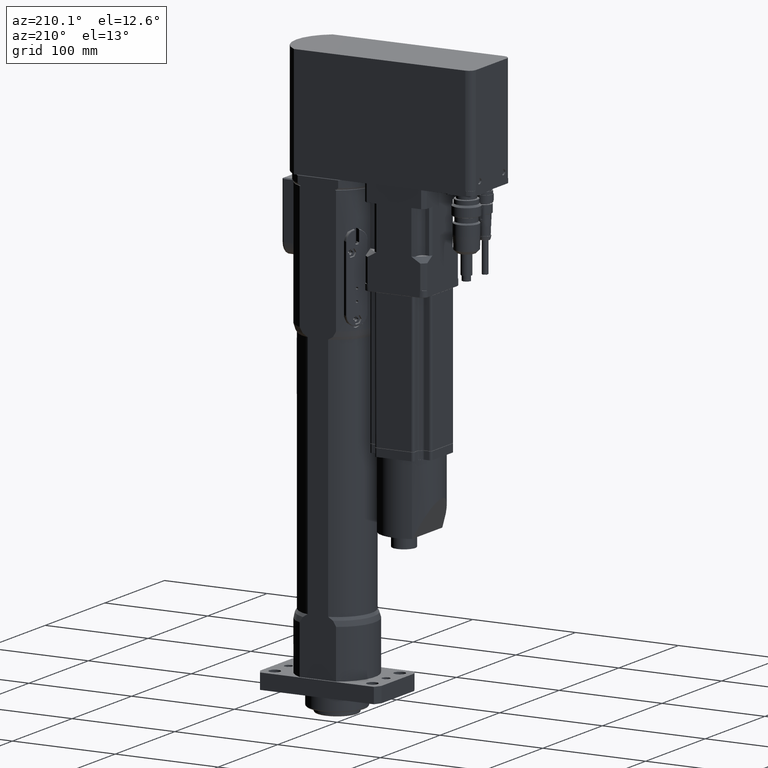
[diagram: clean part render]
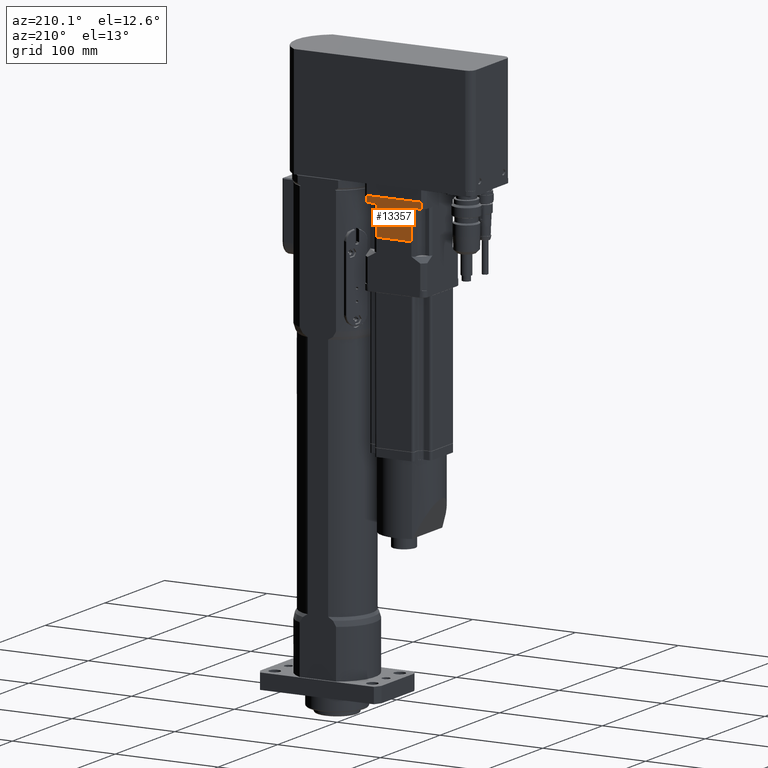
[diagram: same view with one face highlighted and labeled with its STEP entity id]
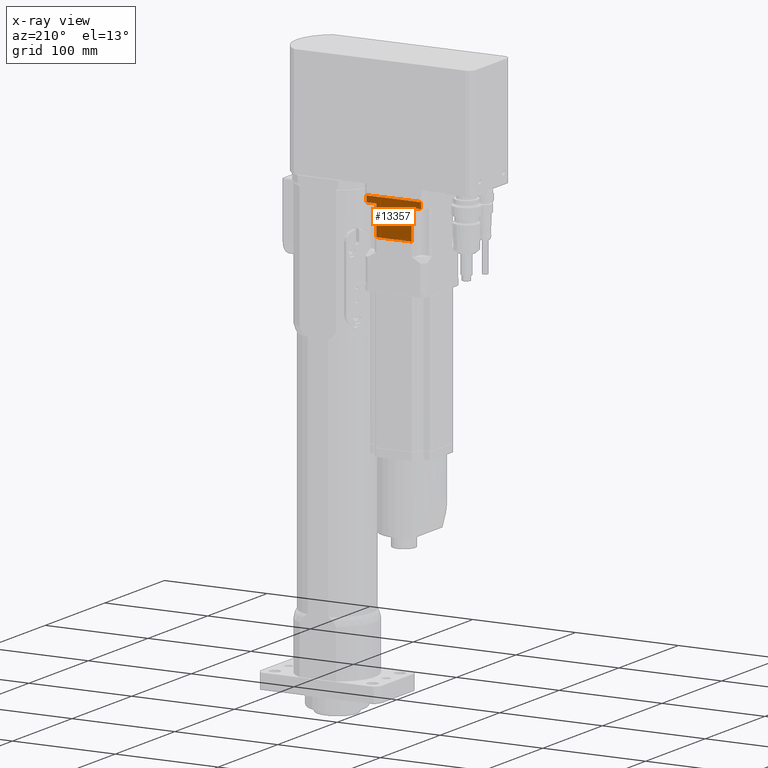
[diagram: x-ray of the same camera — body ghosted, the highlighted face saturated]
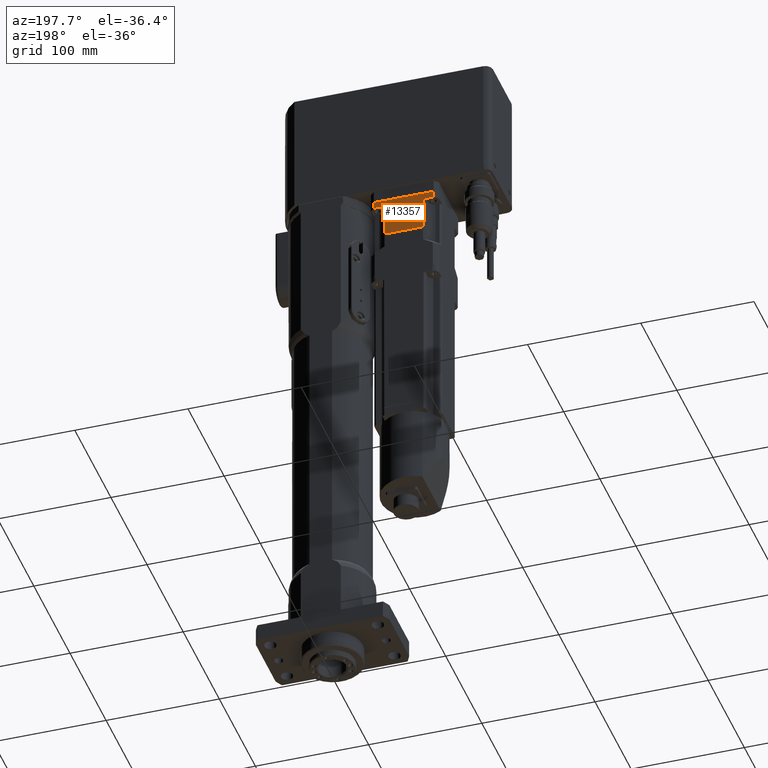
[diagram: same view with one face highlighted and labeled with its STEP entity id]
A machine part, auxiliary view. The second image highlights one B-rep face of the part: STEP entity #13357.
The next image is the same camera in x-ray: the body ghosted, the highlighted face saturated — about 0% of this face is hidden behind the body in this view.
A second angle (auxiliary view) of the same face is appended — the face is thin or edge-on in the first view.
In plain terms, the highlighted planar face has unit normal (0, 1, 0).
Its self-contained STEP definition (entity closure, byte-faithful):
#791=LINE('',#23843,#1726);
#883=LINE('',#24141,#1818);
#1000=LINE('',#25002,#1935);
#1043=LINE('',#25110,#1978);
#1044=LINE('',#25113,#1979);
#1045=LINE('',#25117,#1980);
#1046=LINE('',#25118,#1981);
#1047=LINE('',#25119,#1982);
#1726=VECTOR('',#17319,34.0734500748);
#1818=VECTOR('',#17595,52.9150262212918);
#1935=VECTOR('',#18116,6.);
#1978=VECTOR('',#18233,29.);
#1979=VECTOR('',#18236,29.);
#1980=VECTOR('',#18241,9.42078807325);
#1981=VECTOR('',#18242,6.);
#1982=VECTOR('',#18243,9.42078807325);
#2598=PLANE('',#14717);
#3512=FACE_OUTER_BOUND('',#4446,.T.);
#4446=EDGE_LOOP('',(#11176,#11177,#11178,#11179,#11180,#11181,#11182,#11183));
#5980=VERTEX_POINT('',#23840);
#5981=VERTEX_POINT('',#23842);
#6057=VERTEX_POINT('',#24135);
#6058=VERTEX_POINT('',#24139);
#6233=VERTEX_POINT('',#24999);
#6262=VERTEX_POINT('',#25108);
#6263=VERTEX_POINT('',#25112);
#6264=VERTEX_POINT('',#25116);
#7506=EDGE_CURVE('',#5980,#5981,#791,.T.);
#7635=EDGE_CURVE('',#6057,#6058,#883,.T.);
#7892=EDGE_CURVE('',#6058,#6233,#1000,.T.);
#7948=EDGE_CURVE('',#5980,#6262,#1043,.T.);
#7949=EDGE_CURVE('',#5981,#6263,#1044,.T.);
#7951=EDGE_CURVE('',#6264,#6262,#1045,.T.);
#7952=EDGE_CURVE('',#6057,#6264,#1046,.T.);
#7953=EDGE_CURVE('',#6263,#6233,#1047,.T.);
#11176=ORIENTED_EDGE('',*,*,#7951,.F.);
#11177=ORIENTED_EDGE('',*,*,#7952,.F.);
#11178=ORIENTED_EDGE('',*,*,#7635,.T.);
#11179=ORIENTED_EDGE('',*,*,#7892,.T.);
#11180=ORIENTED_EDGE('',*,*,#7953,.F.);
#11181=ORIENTED_EDGE('',*,*,#7949,.F.);
#11182=ORIENTED_EDGE('',*,*,#7506,.F.);
#11183=ORIENTED_EDGE('',*,*,#7948,.T.);
#13357=ADVANCED_FACE('',(#3512),#2598,.T.);
#14717=AXIS2_PLACEMENT_3D('',#25115,#18239,#18240);
#17319=DIRECTION('',(1.,-1.67849944170064E-16,5.40621472491078E-16));
#17595=DIRECTION('',(1.,-1.67849944170063E-16,0.));
#18116=DIRECTION('',(5.40621472491078E-16,4.44645409684621E-31,-1.));
#18233=DIRECTION('',(-5.40621472491078E-16,-4.44645409684621E-31,1.));
#18236=DIRECTION('',(-5.40621472491078E-16,-4.44645409684621E-31,1.));
#18239=DIRECTION('center_axis',(1.67849944170064E-16,1.,5.35388693659386E-31));
#18240=DIRECTION('ref_axis',(1.,0.,0.));
#18241=DIRECTION('',(1.,-1.67849944170064E-16,5.40621472491078E-16));
#18242=DIRECTION('',(5.40621472491078E-16,4.44645409684621E-31,-1.));
#18243=DIRECTION('',(1.,-1.67849944170064E-16,5.40621472491078E-16));
#23840=CARTESIAN_POINT('',(-89.5367250374002,30.,416.));
#23842=CARTESIAN_POINT('',(-55.4632749626002,30.,416.));
#23843=CARTESIAN_POINT('',(-89.5367250374002,30.,416.));
#24135=CARTESIAN_POINT('',(-98.9575131106459,30.,451.));
#24139=CARTESIAN_POINT('',(-46.0424868893541,30.,451.));
#24141=CARTESIAN_POINT('',(-98.9575131106459,30.,451.));
#24999=CARTESIAN_POINT('',(-46.0424868893502,30.,445.));
#25002=CARTESIAN_POINT('',(-46.0424868893502,30.,451.));
#25108=CARTESIAN_POINT('',(-89.5367250374002,30.,445.));
#25110=CARTESIAN_POINT('',(-89.5367250374002,30.,416.));
#25112=CARTESIAN_POINT('',(-55.4632749626002,30.,445.));
#25113=CARTESIAN_POINT('',(-55.4632749626002,30.,416.));
#25115=CARTESIAN_POINT('Origin',(-98.9575131106502,30.,451.));
#25116=CARTESIAN_POINT('',(-98.9575131106502,30.,445.));
#25117=CARTESIAN_POINT('',(-98.9575131106502,30.,445.));
#25118=CARTESIAN_POINT('',(-98.9575131106502,30.,451.));
#25119=CARTESIAN_POINT('',(-55.4632749626002,30.,445.));